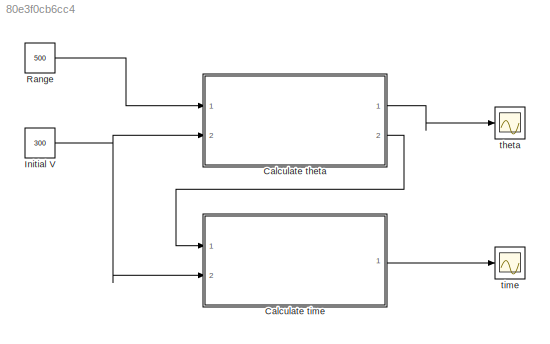
MODEL slx_80e3f0cb6cc4
KIND model
CONFIG AbsTol = auto
CONFIG EnableMultiTasking = off
CONFIG FixedStep = auto
CONFIG MaxStep = auto
CONFIG MinStep = auto
CONFIG RelTol = 1e-3
CONFIG SampleTimeConstraint = Unconstrained
CONFIG SolverName = VariableStepAuto
CONFIG StartTime = 0.0
CONFIG StopTime = inf
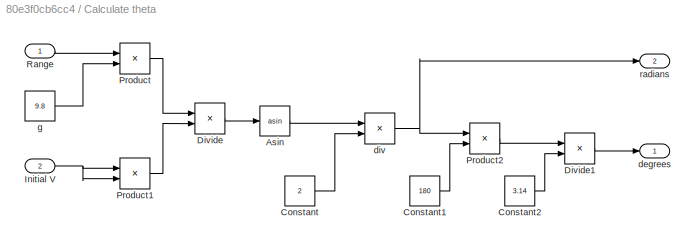
BLOCK [SubSystem] Calculate theta
  Ports = [2, 2]
  RequestExecContextInheritance = off
BLOCK [Trigonometry] Calculate theta/Asin
  Operator = asin
  Ports = [1, 1]
BLOCK [Constant] Calculate theta/Constant
  Value = 2
BLOCK [Constant] Calculate theta/Constant1
  Value = 180
BLOCK [Constant] Calculate theta/Constant2
  Value = 3.14
BLOCK [Product] Calculate theta/Divide
  Inputs = */
  Ports = [2, 1]
BLOCK [Product] Calculate theta/Divide1
  Inputs = */
  Ports = [2, 1]
BLOCK [Inport] Calculate theta/Initial V
  Port = 2
BLOCK [Product] Calculate theta/Product
  Ports = [2, 1]
BLOCK [Product] Calculate theta/Product1
  Ports = [2, 1]
BLOCK [Product] Calculate theta/Product2
  Ports = [2, 1]
BLOCK [Inport] Calculate theta/Range
BLOCK [Outport] Calculate theta/degrees
BLOCK [Product] Calculate theta/div
  Inputs = */
  Ports = [2, 1]
BLOCK [Constant] Calculate theta/g
  Value = 9.8
BLOCK [Outport] Calculate theta/radians
  Port = 2
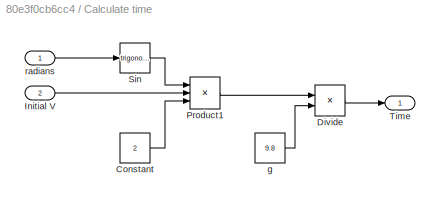
BLOCK [SubSystem] Calculate time
  Ports = [2, 1]
  RequestExecContextInheritance = off
BLOCK [Constant] Calculate time/Constant
  Value = 2
BLOCK [Product] Calculate time/Divide
  Inputs = */
  Ports = [2, 1]
BLOCK [Inport] Calculate time/Initial V
  Port = 2
BLOCK [Product] Calculate time/Product1
  Inputs = 3
  Ports = [3, 1]
BLOCK [Trigonometry] Calculate time/Sin
  Ports = [1, 1]
BLOCK [Outport] Calculate time/Time
BLOCK [Constant] Calculate time/g
  Value = 9.8
BLOCK [Inport] Calculate time/radians
BLOCK [Constant] Initial V
  Value = 300
BLOCK [Constant] Range
  Value = 500
BLOCK [Scope] theta
  Floating = off
  NumInputPorts = 1
  Ports = [1]
  ScopeSpecificationString = Simulink.scopes.TimeScopeBlockCfg('CurrentConfiguration', extmgr.ConfigurationSet(extmgr.Configuration('Core','General UI',true),extmgr.Configuration('Core','Source UI',true),extmgr.Configuration('Sources','WiredSimulink',true),extmgr.Configuration('Visuals','Time Domain',true,'SerializedDisplays',{struct('MinYLimReal','14.99398','MaxYLimReal','34.99398','YLabelReal','','MinYLimMag','14.99398','Ma...<+1407ch>
BLOCK [Scope] time
  Floating = off
  NumInputPorts = 1
  Ports = [1]
  ScopeSpecificationString = Simulink.scopes.TimeScopeBlockCfg('CurrentConfiguration', extmgr.ConfigurationSet(extmgr.Configuration('Core','General UI',true),extmgr.Configuration('Core','Source UI',true),extmgr.Configuration('Sources','WiredSimulink',true,'DataLoggingVariableName','ScopeData1'),extmgr.Configuration('Visuals','Time Domain',true,'SerializedDisplays',{struct('MinYLimReal','5.89506','MaxYLimReal','7.89506','YLabe...<+1434ch>
LINE Calculate theta/Asin:1 -> Calculate theta/div:1
LINE Calculate theta/Constant1:1 -> Calculate theta/Product2:2
LINE Calculate theta/Constant2:1 -> Calculate theta/Divide1:2
LINE Calculate theta/Constant:1 -> Calculate theta/div:2
LINE Calculate theta/Divide1:1 -> Calculate theta/degrees:1
LINE Calculate theta/Divide:1 -> Calculate theta/Asin:1
NET Calculate theta/Initial V:1 -> Calculate theta/Product1:1, Calculate theta/Product1:2
LINE Calculate theta/Product1:1 -> Calculate theta/Divide:2
LINE Calculate theta/Product2:1 -> Calculate theta/Divide1:1
LINE Calculate theta/Product:1 -> Calculate theta/Divide:1
LINE Calculate theta/Range:1 -> Calculate theta/Product:1
NET Calculate theta/div:1 -> Calculate theta/Product2:1, Calculate theta/radians:1
LINE Calculate theta/g:1 -> Calculate theta/Product:2
LINE Calculate theta:1 -> theta:1
LINE Calculate theta:2 -> Calculate time:1
LINE Calculate time/Constant:1 -> Calculate time/Product1:3
LINE Calculate time/Divide:1 -> Calculate time/Time:1
LINE Calculate time/Initial V:1 -> Calculate time/Product1:2
LINE Calculate time/Product1:1 -> Calculate time/Divide:1
LINE Calculate time/Sin:1 -> Calculate time/Product1:1
LINE Calculate time/g:1 -> Calculate time/Divide:2
LINE Calculate time/radians:1 -> Calculate time/Sin:1
LINE Calculate time:1 -> time:1
NET Initial V:1 -> Calculate theta:2, Calculate time:2
LINE Range:1 -> Calculate theta:1
note: NET lines group one-source signal fan-out (src -> all destinations, sorted); 1:1 wires keep LINE
